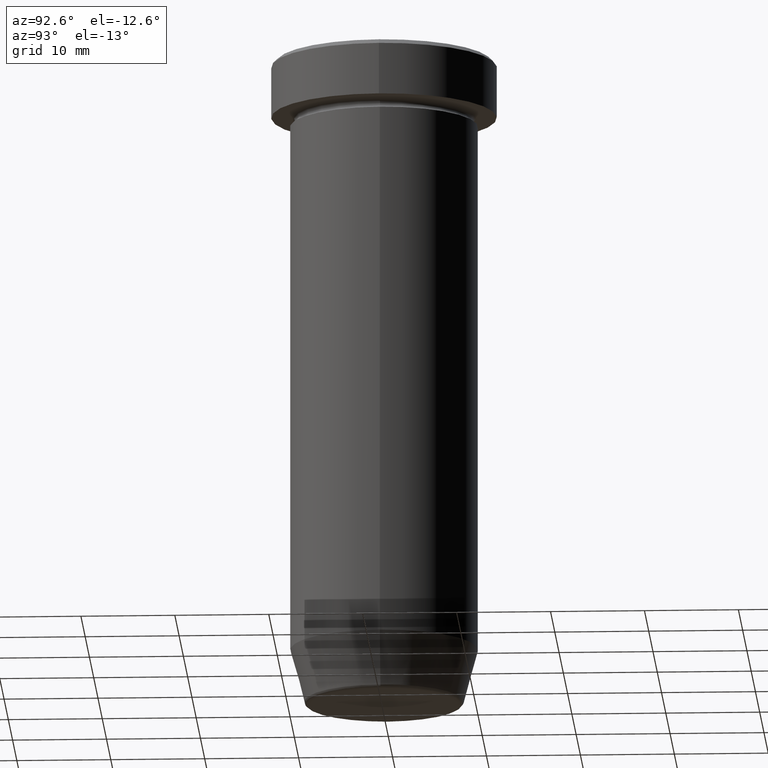
[diagram: clean part render]
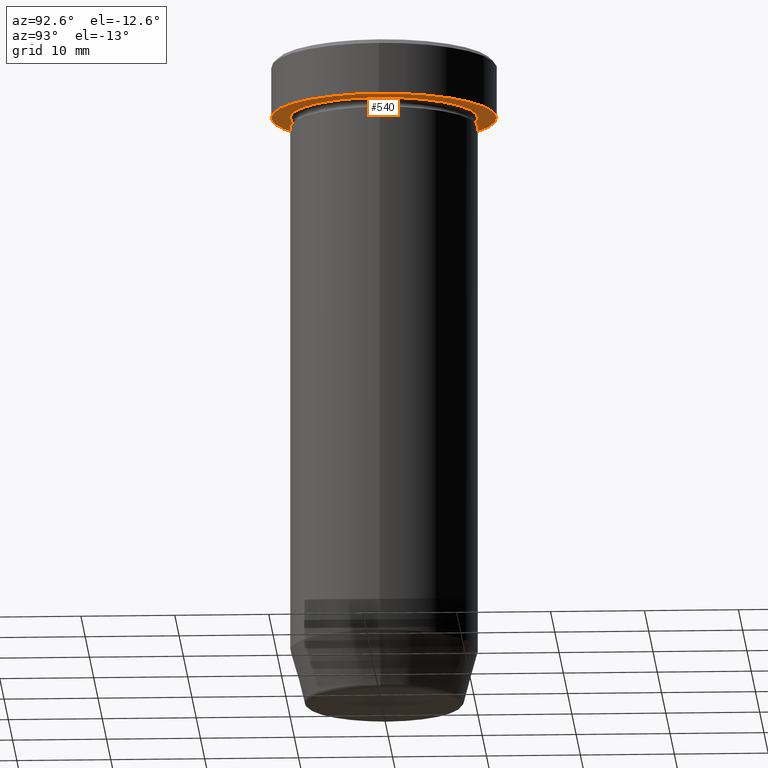
[diagram: same view with one face highlighted and labeled with its STEP entity id]
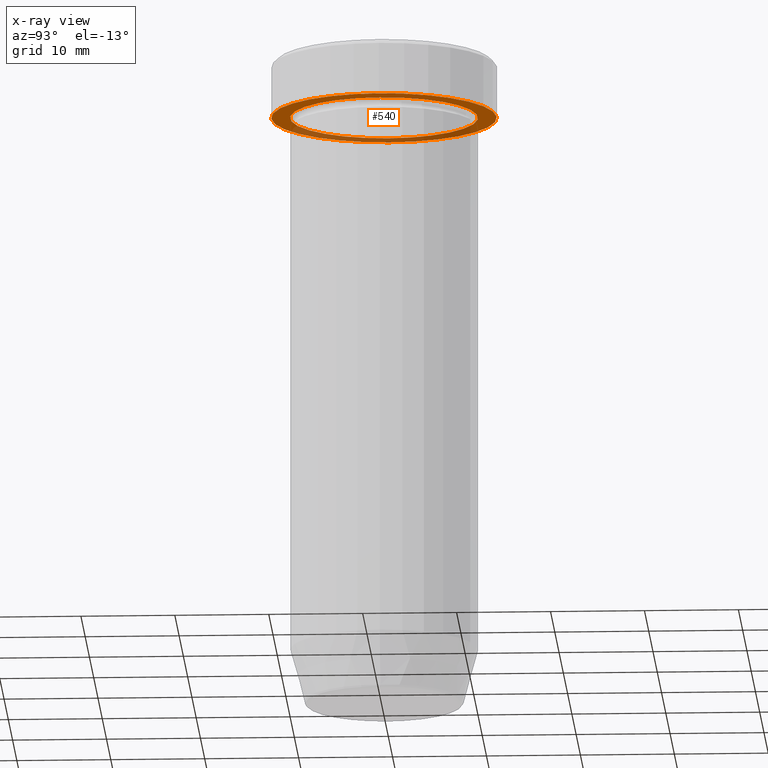
[diagram: x-ray of the same camera — body ghosted, the highlighted face saturated]
A machine part, auxiliary view. The second image highlights one B-rep face of the part: STEP entity #540.
The next image is the same camera in x-ray: the body ghosted, the highlighted face saturated — about 34% of this face is hidden behind the body in this view.
In plain terms, the highlighted planar face has unit normal (0, 0, -1).
Its self-contained STEP definition (entity closure, byte-faithful):
#23 = ORIENTED_EDGE ( 'NONE', *, *, #104, .F. ) ;
#32 = AXIS2_PLACEMENT_3D ( 'NONE', #72, #62, #249 ) ;
#44 = DIRECTION ( 'NONE',  ( -0.000000000000000000, -0.000000000000000000, 1.000000000000000000 ) ) ;
#62 = DIRECTION ( 'NONE',  ( -0.000000000000000000, -0.000000000000000000, 1.000000000000000000 ) ) ;
#66 = DIRECTION ( 'NONE',  ( -0.000000000000000000, -0.000000000000000000, 1.000000000000000000 ) ) ;
#72 = CARTESIAN_POINT ( 'NONE',  ( 0.000000000000000000, 0.000000000000000000, -6.000000000000000000 ) ) ;
#88 = PLANE ( 'NONE',  #93 ) ;
#93 = AXIS2_PLACEMENT_3D ( 'NONE', #404, #555, #314 ) ;
#104 = EDGE_CURVE ( 'NONE', #406, #163, #393, .T. ) ;
#120 = DIRECTION ( 'NONE',  ( -1.000000000000000000, 0.000000000000000000, 0.000000000000000000 ) ) ;
#142 = FACE_OUTER_BOUND ( 'NONE', #269, .T. ) ;
#148 = CIRCLE ( 'NONE', #260, 10.00000000000000000 ) ;
#152 = EDGE_CURVE ( 'NONE', #259, #411, #148, .T. ) ;
#163 = VERTEX_POINT ( 'NONE', #231 ) ;
#185 = ORIENTED_EDGE ( 'NONE', *, *, #152, .T. ) ;
#224 = CIRCLE ( 'NONE', #32, 10.00000000000000000 ) ;
#231 = CARTESIAN_POINT ( 'NONE',  ( 12.00000000000000000, 0.000000000000000000, -5.999999999999999112 ) ) ;
#249 = DIRECTION ( 'NONE',  ( -1.000000000000000000, 0.000000000000000000, 0.000000000000000000 ) ) ;
#250 = CARTESIAN_POINT ( 'NONE',  ( 0.000000000000000000, 0.000000000000000000, -5.999999999999999112 ) ) ;
#259 = VERTEX_POINT ( 'NONE', #475 ) ;
#260 = AXIS2_PLACEMENT_3D ( 'NONE', #495, #66, #120 ) ;
#264 = AXIS2_PLACEMENT_3D ( 'NONE', #250, #584, #341 ) ;
#269 = EDGE_LOOP ( 'NONE', ( #277, #23 ) ) ;
#277 = ORIENTED_EDGE ( 'NONE', *, *, #453, .F. ) ;
#289 = FACE_BOUND ( 'NONE', #422, .T. ) ;
#314 = DIRECTION ( 'NONE',  ( -1.000000000000000000, 0.000000000000000000, -0.000000000000000000 ) ) ;
#325 = CARTESIAN_POINT ( 'NONE',  ( 0.000000000000000000, 0.000000000000000000, -5.999999999999999112 ) ) ;
#341 = DIRECTION ( 'NONE',  ( 1.000000000000000000, 0.000000000000000000, 0.000000000000000000 ) ) ;
#370 = DIRECTION ( 'NONE',  ( 1.000000000000000000, 0.000000000000000000, 0.000000000000000000 ) ) ;
#386 = CIRCLE ( 'NONE', #264, 12.00000000000000000 ) ;
#393 = CIRCLE ( 'NONE', #426, 12.00000000000000000 ) ;
#404 = CARTESIAN_POINT ( 'NONE',  ( 0.000000000000000000, 12.00000000000000000, -6.000000000000000000 ) ) ;
#406 = VERTEX_POINT ( 'NONE', #435 ) ;
#411 = VERTEX_POINT ( 'NONE', #582 ) ;
#422 = EDGE_LOOP ( 'NONE', ( #185, #539 ) ) ;
#426 = AXIS2_PLACEMENT_3D ( 'NONE', #325, #44, #370 ) ;
#435 = CARTESIAN_POINT ( 'NONE',  ( -12.00000000000000000, 1.469576158976823947E-15, -5.999999999999999112 ) ) ;
#446 = EDGE_CURVE ( 'NONE', #411, #259, #224, .T. ) ;
#453 = EDGE_CURVE ( 'NONE', #163, #406, #386, .T. ) ;
#475 = CARTESIAN_POINT ( 'NONE',  ( -10.00000000000000000, 0.000000000000000000, -6.000000000000000000 ) ) ;
#495 = CARTESIAN_POINT ( 'NONE',  ( 0.000000000000000000, 0.000000000000000000, -6.000000000000000000 ) ) ;
#539 = ORIENTED_EDGE ( 'NONE', *, *, #446, .T. ) ;
#540 = ADVANCED_FACE ( 'NONE', ( #289, #142 ), #88, .T. ) ;
#555 = DIRECTION ( 'NONE',  ( 0.000000000000000000, 0.000000000000000000, -1.000000000000000000 ) ) ;
#582 = CARTESIAN_POINT ( 'NONE',  ( 10.00000000000000000, 1.224646799147353256E-15, -6.000000000000000000 ) ) ;
#584 = DIRECTION ( 'NONE',  ( -0.000000000000000000, -0.000000000000000000, 1.000000000000000000 ) ) ;